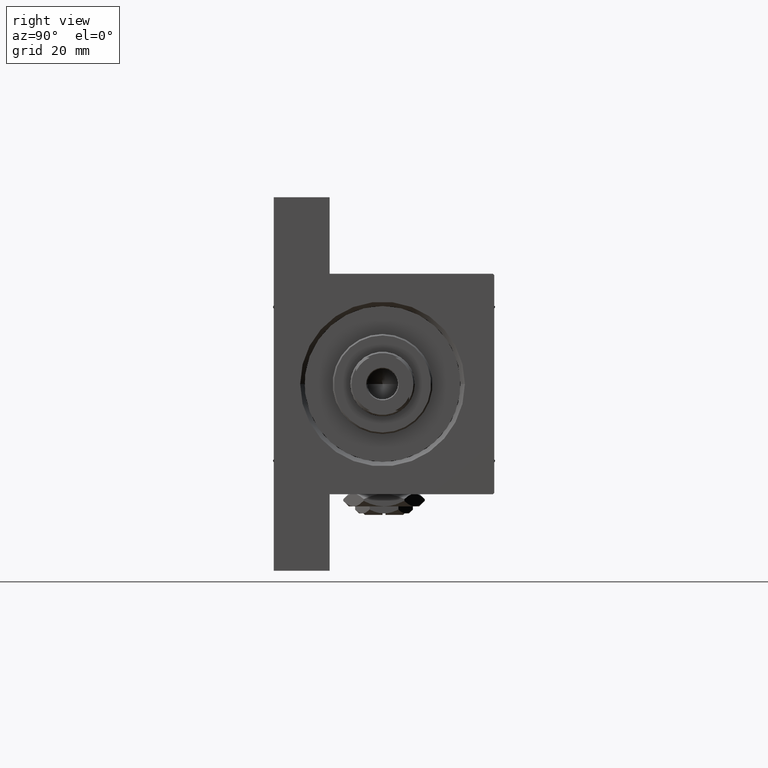
[diagram: clean part render]
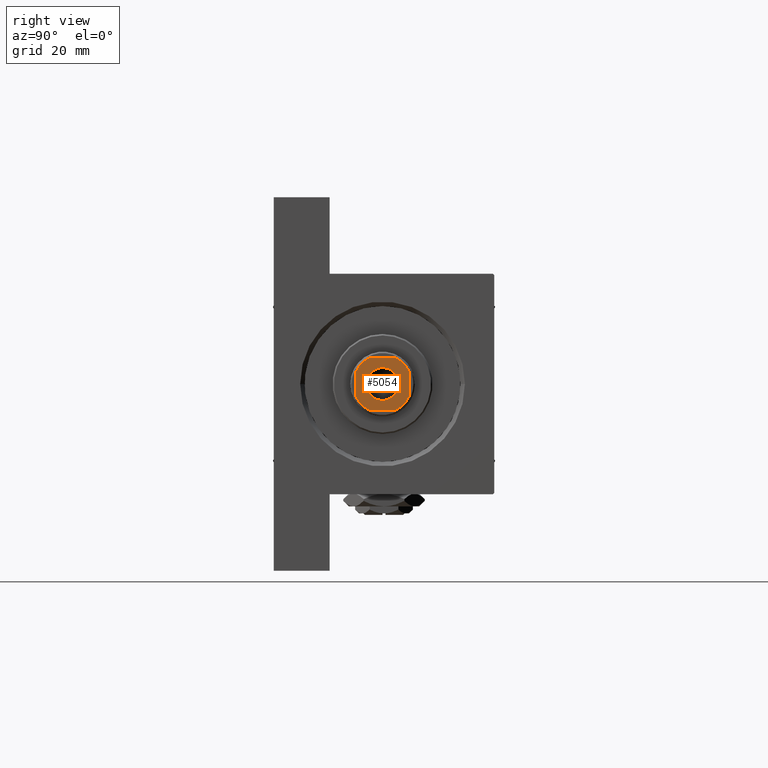
[diagram: same view with one face highlighted and labeled with its STEP entity id]
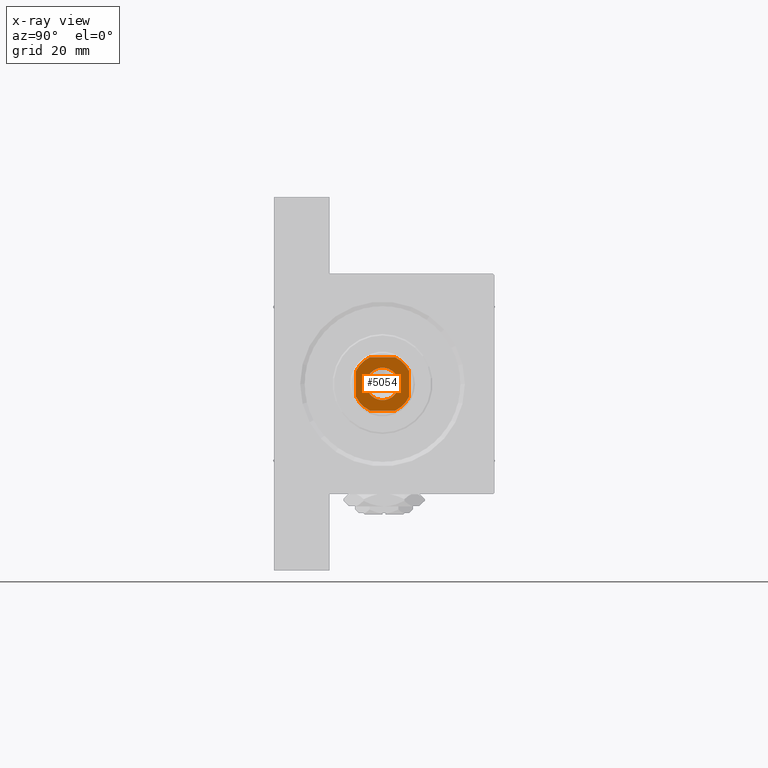
[diagram: x-ray of the same camera — body ghosted, the highlighted face saturated]
A machine part, right view. The second image highlights one B-rep face of the part: STEP entity #5054.
The next image is the same camera in x-ray: the body ghosted, the highlighted face saturated — about 0% of this face is hidden behind the body in this view.
In plain terms, the highlighted planar face has unit normal (1, 0, 0).
Its self-contained STEP definition (entity closure, byte-faithful):
#480 = EDGE_CURVE ( 'NONE', #38762, #7973, #46396, .T. ) ;
#623 = CARTESIAN_POINT ( 'NONE',  ( 0.000000000000000000, 0.000000000000000000, 147.0000000000000284 ) ) ;
#635 = DIRECTION ( 'NONE',  ( -1.000000000000000000, -0.000000000000000000, -0.000000000000000000 ) ) ;
#746 = DIRECTION ( 'NONE',  ( -0.000000000000000000, 0.000000000000000000, 1.000000000000000000 ) ) ;
#2077 = CARTESIAN_POINT ( 'NONE',  ( 0.000000000000000000, 0.000000000000000000, 147.0000000000000284 ) ) ;
#2795 = CARTESIAN_POINT ( 'NONE',  ( 8.999999999999998224, -4.358898943540278736, 147.0000000000000284 ) ) ;
#2835 = CARTESIAN_POINT ( 'NONE',  ( 0.000000000000000000, 0.000000000000000000, 147.0000000000000284 ) ) ;
#4368 = CARTESIAN_POINT ( 'NONE',  ( -9.000000000000003553, 8.999999999999998224, 147.0000000000000284 ) ) ;
#4484 = FACE_BOUND ( 'NONE', #25815, .T. ) ;
#4653 = VECTOR ( 'NONE', #34279, 1000.000000000000000 ) ;
#5054 = ADVANCED_FACE ( 'NONE', ( #4484, #35752 ), #23163, .T. ) ;
#5343 = CARTESIAN_POINT ( 'NONE',  ( -9.000000000000003553, -4.358898943540403081, 147.0000000000000284 ) ) ;
#6478 = ORIENTED_EDGE ( 'NONE', *, *, #30935, .T. ) ;
#7103 = CARTESIAN_POINT ( 'NONE',  ( -4.358898943540404858, -9.000000000000001776, 147.0000000000000284 ) ) ;
#7317 = DIRECTION ( 'NONE',  ( 1.000000000000000000, 0.000000000000000000, 0.000000000000000000 ) ) ;
#7488 = ORIENTED_EDGE ( 'NONE', *, *, #31989, .T. ) ;
#7861 = LINE ( 'NONE', #4368, #8734 ) ;
#7973 = VERTEX_POINT ( 'NONE', #2795 ) ;
#8061 = CARTESIAN_POINT ( 'NONE',  ( 0.000000000000000000, 0.000000000000000000, 147.0000000000000284 ) ) ;
#8170 = ORIENTED_EDGE ( 'NONE', *, *, #28239, .T. ) ;
#8252 = CARTESIAN_POINT ( 'NONE',  ( 0.000000000000000000, 0.000000000000000000, 147.0000000000000284 ) ) ;
#8677 = LINE ( 'NONE', #42325, #37252 ) ;
#8734 = VECTOR ( 'NONE', #635, 1000.000000000000000 ) ;
#8856 = CARTESIAN_POINT ( 'NONE',  ( -9.000000000000001776, -9.000000000000001776, 147.0000000000000284 ) ) ;
#12135 = VERTEX_POINT ( 'NONE', #26090 ) ;
#13541 = DIRECTION ( 'NONE',  ( -0.000000000000000000, 0.000000000000000000, 1.000000000000000000 ) ) ;
#14528 = DIRECTION ( 'NONE',  ( -0.000000000000000000, 0.000000000000000000, 1.000000000000000000 ) ) ;
#14654 = AXIS2_PLACEMENT_3D ( 'NONE', #8252, #42630, #35617 ) ;
#14833 = VERTEX_POINT ( 'NONE', #25694 ) ;
#15407 = AXIS2_PLACEMENT_3D ( 'NONE', #623, #42220, #34954 ) ;
#15443 = CIRCLE ( 'NONE', #47269, 9.999999999999875655 ) ;
#15910 = DIRECTION ( 'NONE',  ( 1.000000000000000000, 0.000000000000000000, 0.000000000000000000 ) ) ;
#16348 = VERTEX_POINT ( 'NONE', #46800 ) ;
#16750 = DIRECTION ( 'NONE',  ( 0.000000000000000000, -0.000000000000000000, -1.000000000000000000 ) ) ;
#17039 = EDGE_CURVE ( 'NONE', #14833, #16348, #7861, .T. ) ;
#17054 = ORIENTED_EDGE ( 'NONE', *, *, #17039, .T. ) ;
#17751 = AXIS2_PLACEMENT_3D ( 'NONE', #8061, #14528, #7317 ) ;
#17874 = CIRCLE ( 'NONE', #14654, 5.549999999999985612 ) ;
#18030 = DIRECTION ( 'NONE',  ( -0.000000000000000000, 0.000000000000000000, 1.000000000000000000 ) ) ;
#19291 = LINE ( 'NONE', #37983, #37851 ) ;
#20287 = VERTEX_POINT ( 'NONE', #22973 ) ;
#20335 = ORIENTED_EDGE ( 'NONE', *, *, #45394, .T. ) ;
#20888 = AXIS2_PLACEMENT_3D ( 'NONE', #47669, #13541, #40208 ) ;
#22973 = CARTESIAN_POINT ( 'NONE',  ( 8.999999999999998224, 4.358898943540394200, 147.0000000000000284 ) ) ;
#23163 = PLANE ( 'NONE',  #47315 ) ;
#23266 = DIRECTION ( 'NONE',  ( 9.637352644315595243E-17, -1.000000000000000000, 0.000000000000000000 ) ) ;
#23783 = VERTEX_POINT ( 'NONE', #45171 ) ;
#24593 = ORIENTED_EDGE ( 'NONE', *, *, #46977, .T. ) ;
#25315 = ORIENTED_EDGE ( 'NONE', *, *, #42088, .T. ) ;
#25694 = CARTESIAN_POINT ( 'NONE',  ( 4.358898943540393311, 8.999999999999998224, 147.0000000000000284 ) ) ;
#25754 = CIRCLE ( 'NONE', #15407, 9.999999999999825917 ) ;
#25815 = EDGE_LOOP ( 'NONE', ( #20335, #34058 ) ) ;
#26090 = CARTESIAN_POINT ( 'NONE',  ( 5.549999999999985612, 0.000000000000000000, 147.0000000000000284 ) ) ;
#26646 = CARTESIAN_POINT ( 'NONE',  ( 0.000000000000000000, 0.000000000000000000, 147.0000000000000284 ) ) ;
#27248 = CIRCLE ( 'NONE', #20888, 9.999999999999884537 ) ;
#28239 = EDGE_CURVE ( 'NONE', #36340, #46905, #27248, .T. ) ;
#29498 = CARTESIAN_POINT ( 'NONE',  ( 4.358898943540274296, -9.000000000000001776, 147.0000000000000284 ) ) ;
#29597 = ORIENTED_EDGE ( 'NONE', *, *, #42288, .T. ) ;
#30827 = ORIENTED_EDGE ( 'NONE', *, *, #480, .T. ) ;
#30935 = EDGE_CURVE ( 'NONE', #16348, #34817, #25754, .T. ) ;
#31941 = DIRECTION ( 'NONE',  ( 1.000000000000000000, 0.000000000000000000, 0.000000000000000000 ) ) ;
#31989 = EDGE_CURVE ( 'NONE', #20287, #14833, #15443, .T. ) ;
#32819 = EDGE_CURVE ( 'NONE', #23783, #12135, #17874, .T. ) ;
#33208 = DIRECTION ( 'NONE',  ( 1.000000000000000000, 0.000000000000000000, 0.000000000000000000 ) ) ;
#34058 = ORIENTED_EDGE ( 'NONE', *, *, #32819, .T. ) ;
#34279 = DIRECTION ( 'NONE',  ( 1.000000000000000000, 0.000000000000000000, 0.000000000000000000 ) ) ;
#34516 = LINE ( 'NONE', #8856, #4653 ) ;
#34817 = VERTEX_POINT ( 'NONE', #46424 ) ;
#34954 = DIRECTION ( 'NONE',  ( 1.000000000000000000, 0.000000000000000000, 0.000000000000000000 ) ) ;
#35617 = DIRECTION ( 'NONE',  ( 1.000000000000000000, 0.000000000000000000, 0.000000000000000000 ) ) ;
#35752 = FACE_OUTER_BOUND ( 'NONE', #40968, .T. ) ;
#36340 = VERTEX_POINT ( 'NONE', #5343 ) ;
#37252 = VECTOR ( 'NONE', #42564, 1000.000000000000000 ) ;
#37851 = VECTOR ( 'NONE', #23266, 1000.000000000000000 ) ;
#37983 = CARTESIAN_POINT ( 'NONE',  ( -9.000000000000003553, 8.999999999999998224, 147.0000000000000284 ) ) ;
#38762 = VERTEX_POINT ( 'NONE', #29498 ) ;
#40208 = DIRECTION ( 'NONE',  ( 1.000000000000000000, 0.000000000000000000, 0.000000000000000000 ) ) ;
#40968 = EDGE_LOOP ( 'NONE', ( #25315, #7488, #17054, #6478, #24593, #8170, #29597, #30827 ) ) ;
#41816 = AXIS2_PLACEMENT_3D ( 'NONE', #2077, #16750, #31941 ) ;
#42088 = EDGE_CURVE ( 'NONE', #7973, #20287, #8677, .T. ) ;
#42220 = DIRECTION ( 'NONE',  ( -0.000000000000000000, 0.000000000000000000, 1.000000000000000000 ) ) ;
#42288 = EDGE_CURVE ( 'NONE', #46905, #38762, #34516, .T. ) ;
#42325 = CARTESIAN_POINT ( 'NONE',  ( 8.999999999999996447, 8.999999999999998224, 147.0000000000000284 ) ) ;
#42564 = DIRECTION ( 'NONE',  ( -1.927470528863119049E-16, 1.000000000000000000, -0.000000000000000000 ) ) ;
#42630 = DIRECTION ( 'NONE',  ( 0.000000000000000000, -0.000000000000000000, -1.000000000000000000 ) ) ;
#44199 = CIRCLE ( 'NONE', #41816, 5.549999999999985612 ) ;
#45171 = CARTESIAN_POINT ( 'NONE',  ( -5.549999999999985612, 6.796789735267792045E-16, 147.0000000000000284 ) ) ;
#45394 = EDGE_CURVE ( 'NONE', #12135, #23783, #44199, .T. ) ;
#46396 = CIRCLE ( 'NONE', #17751, 9.999999999999825917 ) ;
#46424 = CARTESIAN_POINT ( 'NONE',  ( -9.000000000000003553, 4.358898943540272519, 147.0000000000000284 ) ) ;
#46800 = CARTESIAN_POINT ( 'NONE',  ( -4.358898943540280513, 8.999999999999998224, 147.0000000000000284 ) ) ;
#46905 = VERTEX_POINT ( 'NONE', #7103 ) ;
#46977 = EDGE_CURVE ( 'NONE', #34817, #36340, #19291, .T. ) ;
#47269 = AXIS2_PLACEMENT_3D ( 'NONE', #2835, #18030, #33208 ) ;
#47315 = AXIS2_PLACEMENT_3D ( 'NONE', #26646, #746, #15910 ) ;
#47669 = CARTESIAN_POINT ( 'NONE',  ( 0.000000000000000000, 0.000000000000000000, 147.0000000000000284 ) ) ;